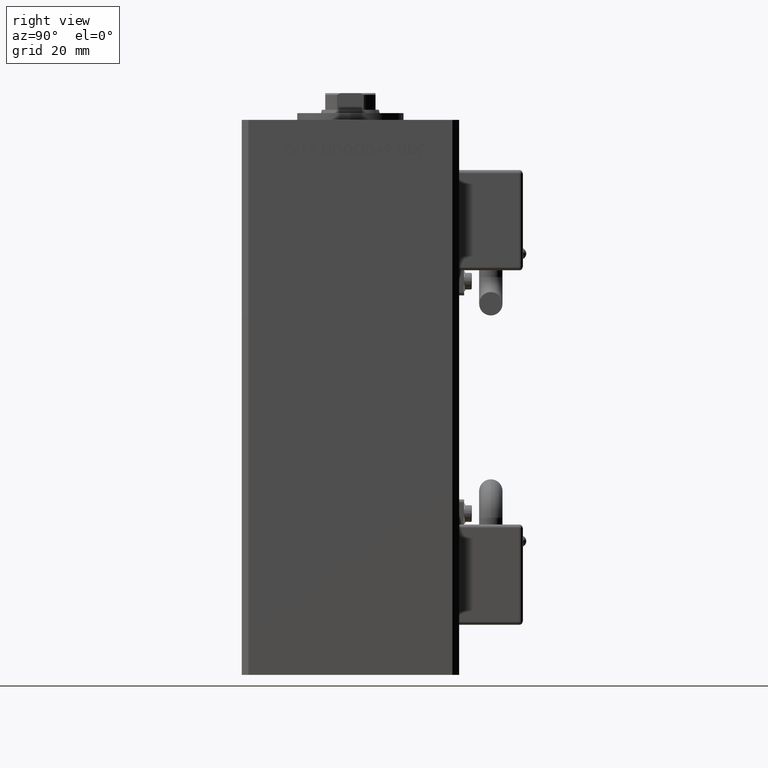
[diagram: clean part render]
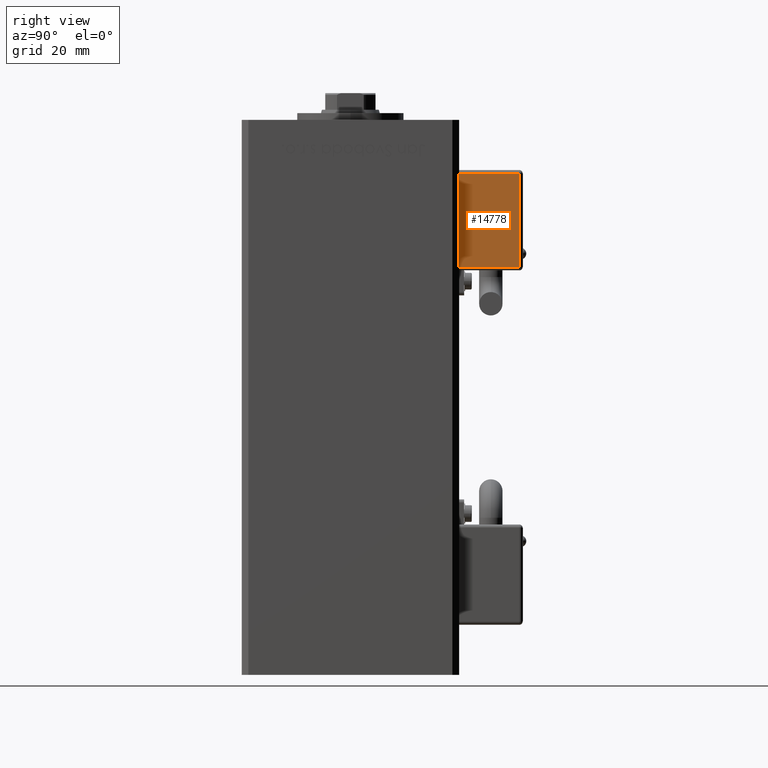
[diagram: same view with one face highlighted and labeled with its STEP entity id]
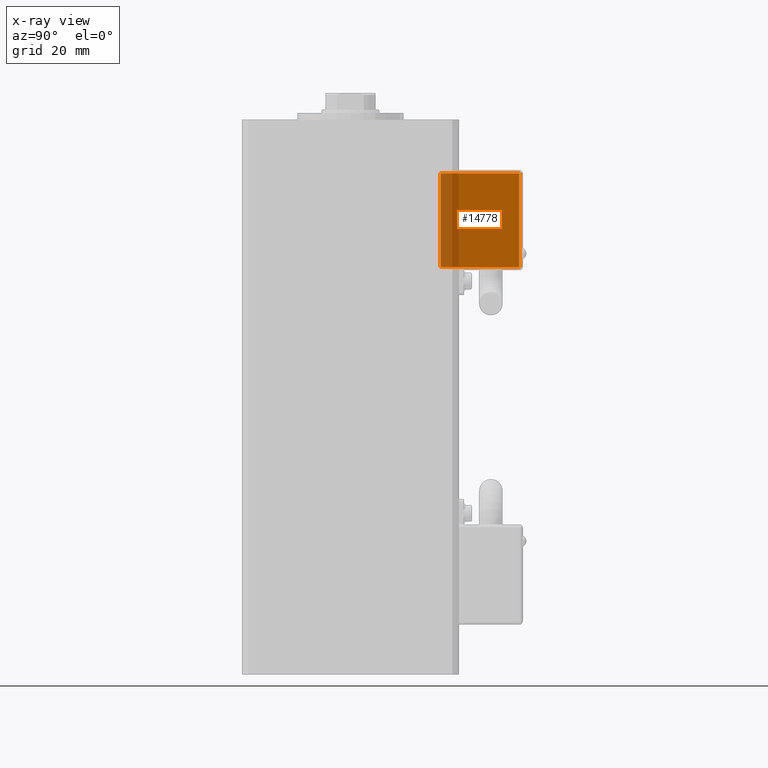
[diagram: x-ray of the same camera — body ghosted, the highlighted face saturated]
A machine part, right view. The second image highlights one B-rep face of the part: STEP entity #14778.
The next image is the same camera in x-ray: the body ghosted, the highlighted face saturated — about 23% of this face is hidden behind the body in this view.
In plain terms, the highlighted planar face has unit normal (1, 0, 0).
Its self-contained STEP definition (entity closure, byte-faithful):
#561 = CARTESIAN_POINT ( 'NONE',  ( 10.80000000000000071, 50.50000000000000000, -54.00000000000000000 ) ) ;
#1146 = EDGE_CURVE ( 'NONE', #36640, #28014, #20354, .T. ) ;
#1954 = ORIENTED_EDGE ( 'NONE', *, *, #53512, .T. ) ;
#2615 = CARTESIAN_POINT ( 'NONE',  ( 10.80000000000000071, 50.50000000000000000, -26.00000000000000000 ) ) ;
#5535 = LINE ( 'NONE', #35796, #38338 ) ;
#6141 = LINE ( 'NONE', #32227, #50750 ) ;
#7051 = CARTESIAN_POINT ( 'NONE',  ( 10.80000000000000071, 50.50000000000000000, -25.00000000000000000 ) ) ;
#8220 = VERTEX_POINT ( 'NONE', #12799 ) ;
#11675 = PLANE ( 'NONE',  #44347 ) ;
#11942 = DIRECTION ( 'NONE',  ( 0.000000000000000000, -2.220446049250000002E-16, 1.000000000000000000 ) ) ;
#12799 = CARTESIAN_POINT ( 'NONE',  ( 10.80000000000000071, 27.00000000000000000, -26.00000000000000000 ) ) ;
#13832 = DIRECTION ( 'NONE',  ( -3.108624468950000014E-32, 1.000000000000000000, 1.400000000000000069E-16 ) ) ;
#14778 = ADVANCED_FACE ( 'NONE', ( #20842 ), #11675, .T. ) ;
#14997 = DIRECTION ( 'NONE',  ( 2.220446049250000002E-16, 1.200000000000000024E-16, -1.000000000000000000 ) ) ;
#20354 = LINE ( 'NONE', #7051, #40798 ) ;
#20842 = FACE_OUTER_BOUND ( 'NONE', #54577, .T. ) ;
#21390 = VECTOR ( 'NONE', #50829, 1000.000000000000000 ) ;
#24030 = ORIENTED_EDGE ( 'NONE', *, *, #54391, .T. ) ;
#27225 = CARTESIAN_POINT ( 'NONE',  ( 10.80000000000000071, 26.00000000000000000, -26.00000000000000000 ) ) ;
#28014 = VERTEX_POINT ( 'NONE', #2615 ) ;
#29807 = ORIENTED_EDGE ( 'NONE', *, *, #47328, .T. ) ;
#31400 = LINE ( 'NONE', #27225, #21390 ) ;
#32227 = CARTESIAN_POINT ( 'NONE',  ( 10.80000000000000071, 27.00000000000000000, -55.00000000000000000 ) ) ;
#35796 = CARTESIAN_POINT ( 'NONE',  ( 10.80000000000000071, 51.50000000000000000, -54.00000000000000000 ) ) ;
#36225 = DIRECTION ( 'NONE',  ( -2.220446049250000002E-16, -1.200000000000000024E-16, 1.000000000000000000 ) ) ;
#36640 = VERTEX_POINT ( 'NONE', #561 ) ;
#38338 = VECTOR ( 'NONE', #13832, 1000.000000000000000 ) ;
#40798 = VECTOR ( 'NONE', #36225, 1000.000000000000000 ) ;
#42261 = DIRECTION ( 'NONE',  ( 1.000000000000000000, 4.930380657629929601E-32, 1.094764425253299406E-47 ) ) ;
#44347 = AXIS2_PLACEMENT_3D ( 'NONE', #54750, #42261, #11942 ) ;
#45596 = ORIENTED_EDGE ( 'NONE', *, *, #1146, .T. ) ;
#47328 = EDGE_CURVE ( 'NONE', #28014, #8220, #31400, .T. ) ;
#50750 = VECTOR ( 'NONE', #14997, 1000.000000000000000 ) ;
#50829 = DIRECTION ( 'NONE',  ( 3.108624468950000014E-32, -1.000000000000000000, -1.400000000000000069E-16 ) ) ;
#51218 = CARTESIAN_POINT ( 'NONE',  ( 10.80000000000000071, 27.00000000000000000, -54.00000000000000000 ) ) ;
#51345 = VERTEX_POINT ( 'NONE', #51218 ) ;
#53512 = EDGE_CURVE ( 'NONE', #51345, #36640, #5535, .T. ) ;
#54391 = EDGE_CURVE ( 'NONE', #8220, #51345, #6141, .T. ) ;
#54577 = EDGE_LOOP ( 'NONE', ( #29807, #24030, #1954, #45596 ) ) ;
#54750 = CARTESIAN_POINT ( 'NONE',  ( 10.80000000000000071, 26.00000000000000000, -55.00000000000000000 ) ) ;